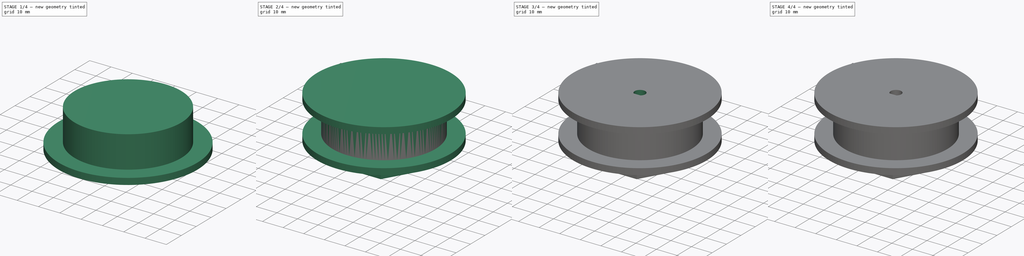
[diagram: build sequence overview — one tinted view per stage of 4, left to right]
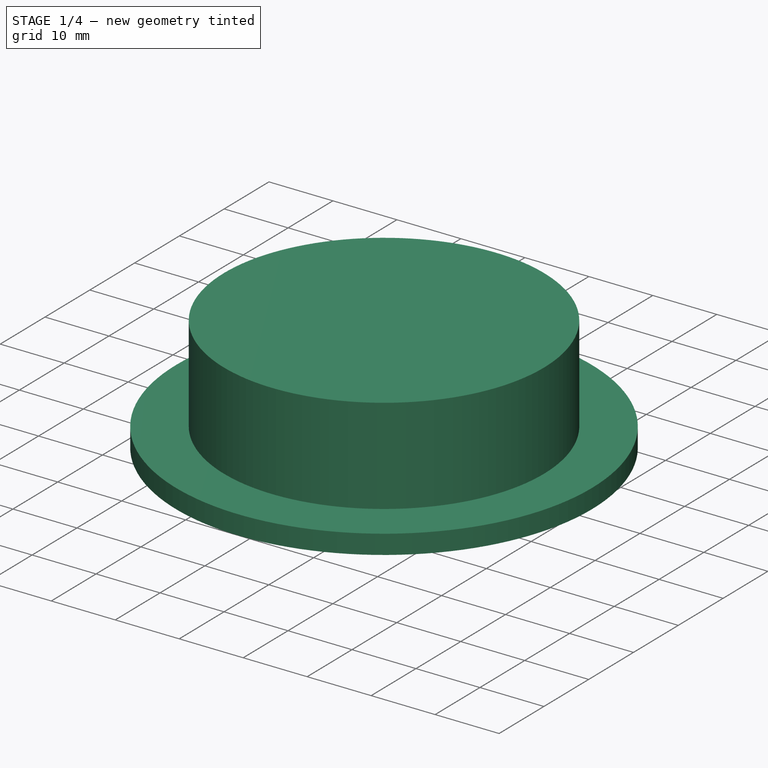
[diagram: stage 1 of 4 — iso view after this stage's code; geometry added in this stage tinted green]
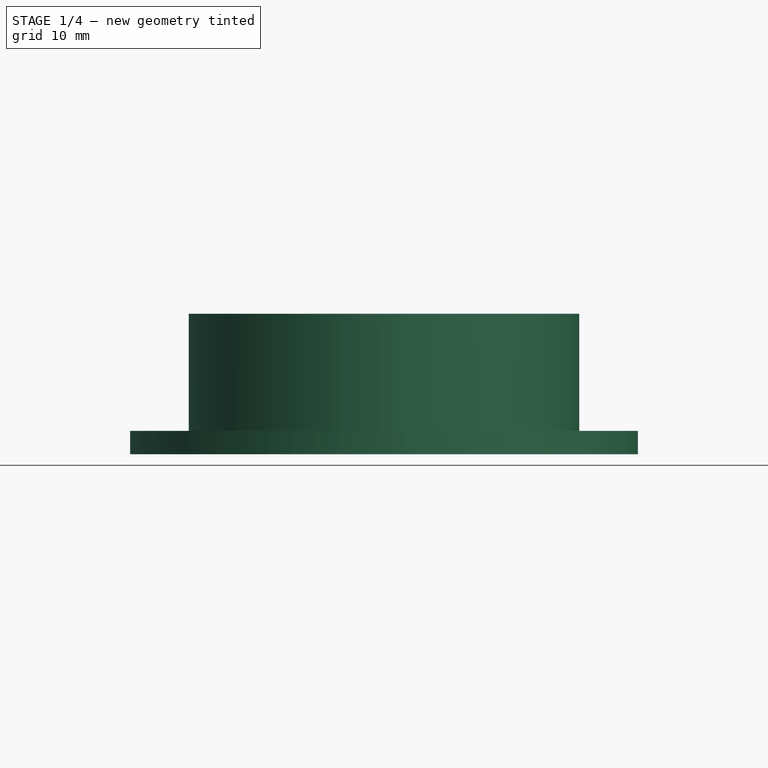
[diagram: stage 1 of 4 — front view after this stage's code; geometry added in this stage tinted green]
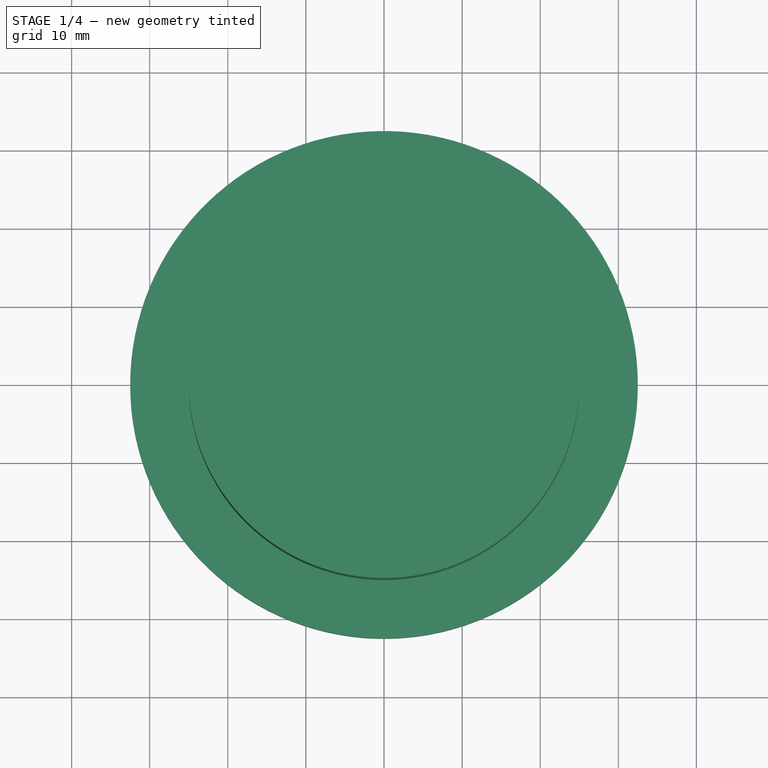
[diagram: stage 1 of 4 — top view after this stage's code; geometry added in this stage tinted green]
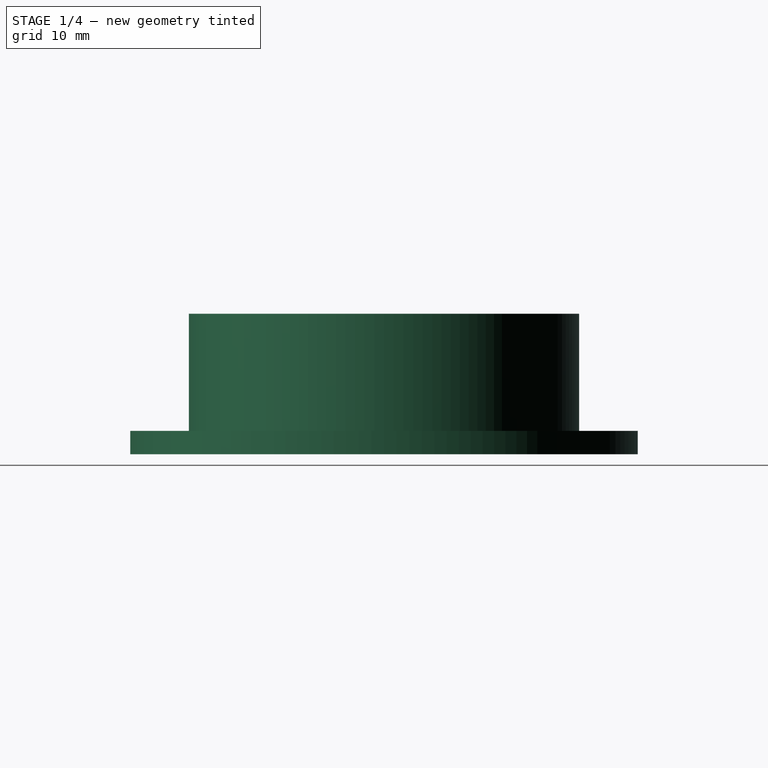
[diagram: stage 1 of 4 — right view after this stage's code; geometry added in this stage tinted green]
FCSTD DOCUMENT  (FreeCAD 0.21R33694 (Git))
Label: carretel_v4
License: All rights reserved
LicenseURL: https://en.wikipedia.org/wiki/All_rights_reserved
objects: Sketcher::SketchObject×8, PartDesign::Pocket×5, PartDesign::Pad×4, PartDesign::Body×2, PartDesign::Boolean×1
note: 29 computed .brp shape members not serialized (recipe doc carries the construction recipe); baked Part::Feature solids carry a one-line shape summary decoded from their .brp

FEATURE [Sketcher::SketchObject] Sketch  label="sk agarre"
  FullyConstrained = true
  MapMode = 5
  Support = -> [XY_Plane001]
  sketch-geometry (7):
    g0: LineSegment StartX=15 StartY=0 StartZ=0 EndX=7.5 EndY=12.9904 EndZ=0
    g1: LineSegment StartX=7.5 StartY=12.9904 StartZ=0 EndX=-7.5 EndY=12.9904 EndZ=0
    g2: LineSegment StartX=-7.5 StartY=12.9904 StartZ=0 EndX=-15 EndY=0 EndZ=0
    g3: LineSegment StartX=-15 StartY=7e-16 StartZ=0 EndX=-7.5 EndY=-12.9904 EndZ=0
    g4: LineSegment StartX=-7.5 StartY=-12.9904 StartZ=0 EndX=7.5 EndY=-12.9904 EndZ=0
    g5: LineSegment StartX=7.5 StartY=-12.9904 StartZ=0 EndX=15 EndY=0 EndZ=0
    g6: Circle CenterX=0 CenterY=0 CenterZ=0 NormalX=0 NormalY=0 NormalZ=1 AngleXU=0 Radius=15
  constraints (16):
    c: Coincident(g0,g1)
    c: Coincident(g1,g2)
    c: Coincident(g2,g3)
    c: Coincident(g3,g4)
    c: Coincident(g4,g5)
    c: Coincident(g5,g0)
    c: Equal(g0, g1-g5) x5
    c: PointOnObject(g0,g6)
    c: PointOnObject(g1,g6)
    c: PointOnObject(g2,g6)
    c: PointOnObject(g3,g6)
    c: PointOnObject(g4,g6)
    c: PointOnObject(g5,g6)
    c: Coincident(g6,g-1)
    c: PointOnObject(g5,g-1)
    c: DistanceX(g1,g1) = 15
FEATURE [Sketcher::SketchObject] Sketch001  label="sk carretel base"
  FullyConstrained = true
  MapMode = 5
  Support = -> [XY_Plane]
  sketch-geometry (1):
    g0: Circle CenterX=0 CenterY=0 CenterZ=0 NormalX=0 NormalY=0 NormalZ=1 AngleXU=0 Radius=32.5
  constraints (2):
    c: Coincident(g0,g-1)
    c: Diameter(g0) = 65
FEATURE [PartDesign::Pad] Pad001  label="base carretel"
  Direction = (0,0,1)
  Length = 3
  Length2 = 10
  Profile = -> Sketch001
  ReferenceAxis = -> Sketch001 [N_Axis]
  Type = 0
FEATURE [Sketcher::SketchObject] Sketch002  label="sk carretel tronco"
  FullyConstrained = true
  MapMode = 2
  Placement = pos=(0,0,3) rot=(0,0,1;0rad)
  Support = -> [Sketch002]
  sketch-geometry (1):
    g0: Circle CenterX=0 CenterY=0 CenterZ=0 NormalX=0 NormalY=0 NormalZ=1 AngleXU=0 Radius=25
  constraints (2):
    c: Coincident(g0,g-1)
    c: Diameter(g0) = 50
FEATURE [PartDesign::Pad] Pad002  label="tronco"
  BaseFeature = -> Pad001
  Direction = (0,0,1)
  Length = 15
  Length2 = 10
  Profile = -> Sketch002
  ReferenceAxis = -> Sketch002 [N_Axis]
  Type = 0
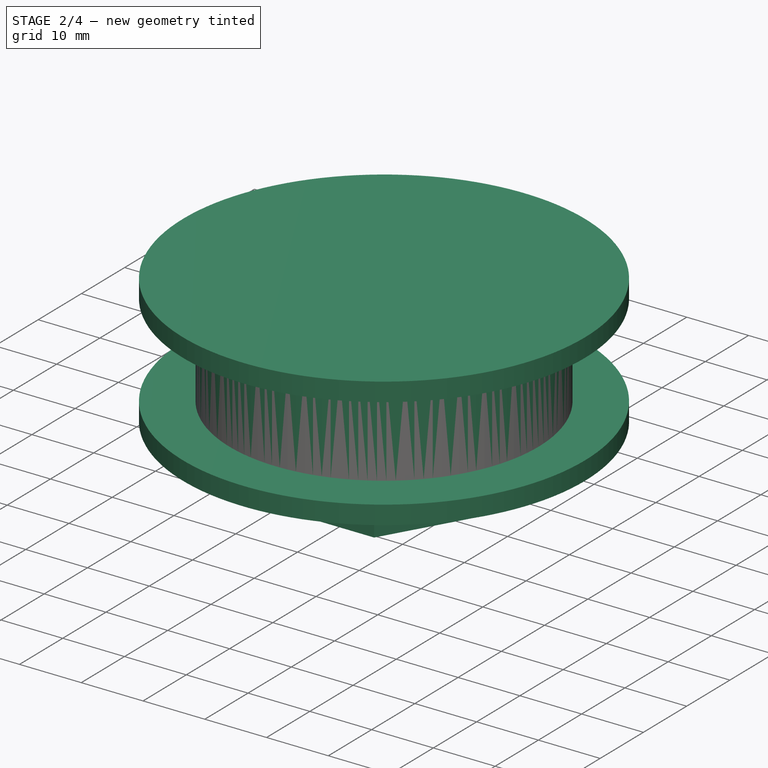
[diagram: stage 2 of 4 — iso view after this stage's code; geometry added in this stage tinted green]
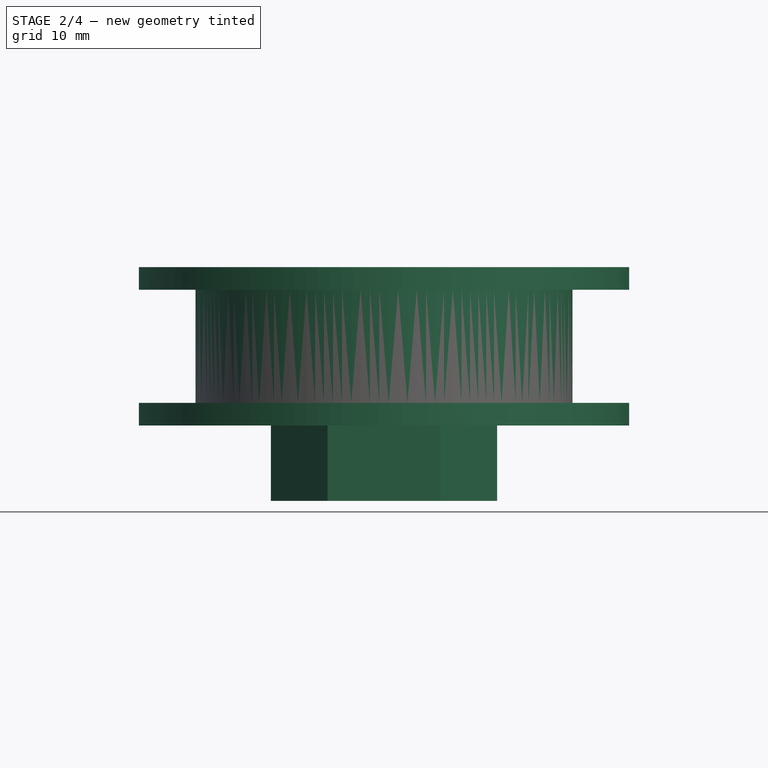
[diagram: stage 2 of 4 — front view after this stage's code; geometry added in this stage tinted green]
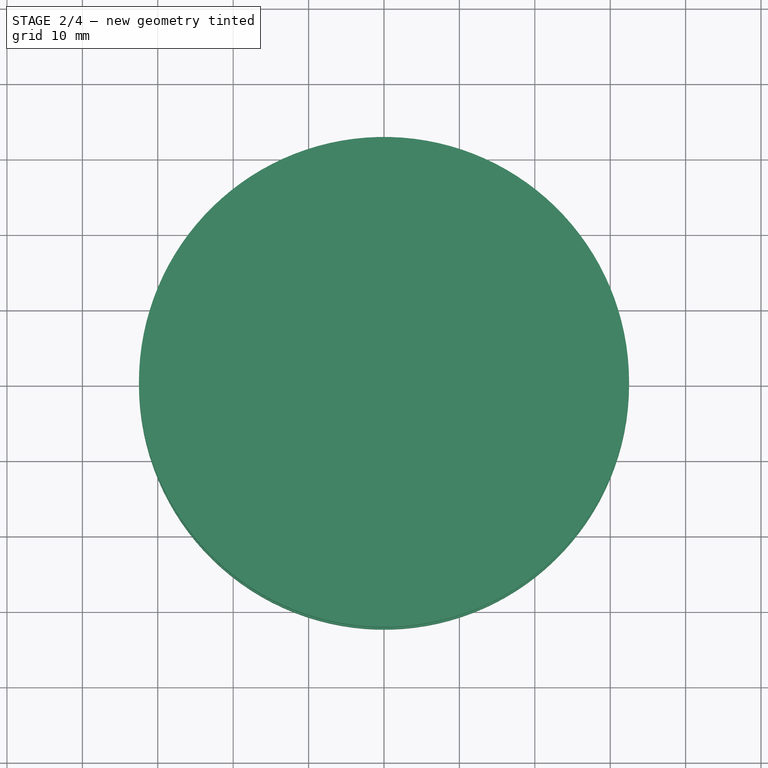
[diagram: stage 2 of 4 — top view after this stage's code; geometry added in this stage tinted green]
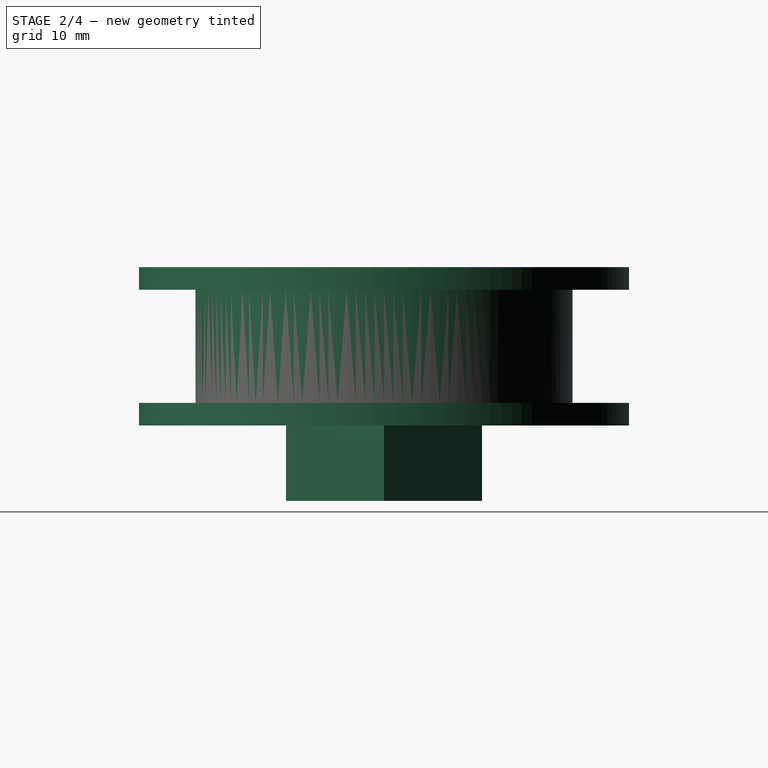
[diagram: stage 2 of 4 — right view after this stage's code; geometry added in this stage tinted green]
FEATURE [PartDesign::Pad] Pad  label="agarre"
  Direction = (0,0,1)
  Length = 10
  Length2 = 10
  Profile = -> Sketch
  ReferenceAxis = -> Sketch [N_Axis]
  Type = 0
FEATURE [Sketcher::SketchObject] Sketch003  label="sk carretel tapa"
  FullyConstrained = true
  MapMode = 5
  Placement = pos=(0,0,18) rot=(0,0,1;0rad)
  Support = -> [Pad002]
  sketch-geometry (1):
    g0: Circle CenterX=0 CenterY=0 CenterZ=0 NormalX=0 NormalY=0 NormalZ=1 AngleXU=0 Radius=32.5
  constraints (2):
    c: Coincident(g0,g-1)
    c: Diameter(g0) = 65
FEATURE [PartDesign::Pad] Pad003  label="tapa"
  BaseFeature = -> Pad002
  Direction = (0,0,1)
  Length = 3
  Length2 = 10
  Profile = -> Sketch003
  ReferenceAxis = -> Sketch003 [N_Axis]
  Type = 0
FEATURE [PartDesign::Body] Body  label="carretel"
  Group = -> [Sketch001,Pad001,Sketch002,Pad002,Sketch003,Pad003]
  Origin = -> Origin
  Placement = pos=(0,0,10) rot=(0,0,1;0rad)
  Tip = -> Pad003
FEATURE [PartDesign::Boolean] Boolean  label="fusion de carretel"
  BaseFeature = -> Pad
  Group = -> [Body]
  Type = 0
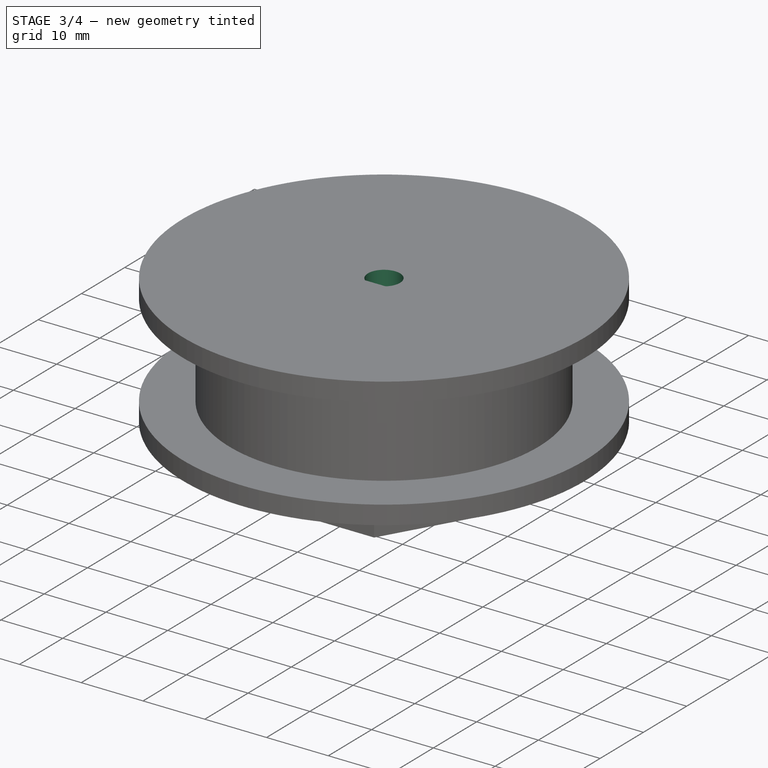
[diagram: stage 3 of 4 — iso view after this stage's code; geometry added in this stage tinted green]
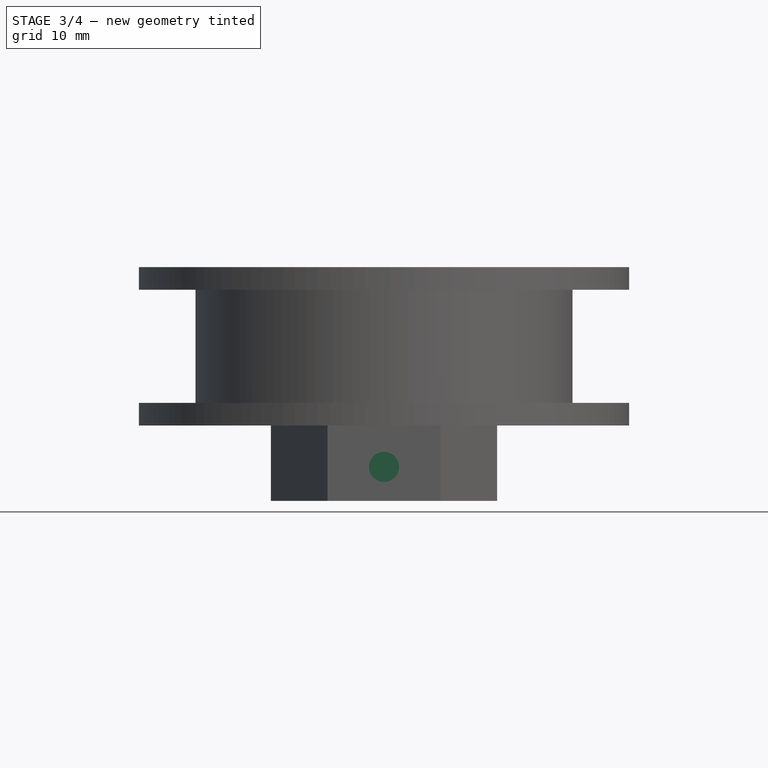
[diagram: stage 3 of 4 — front view after this stage's code; geometry added in this stage tinted green]
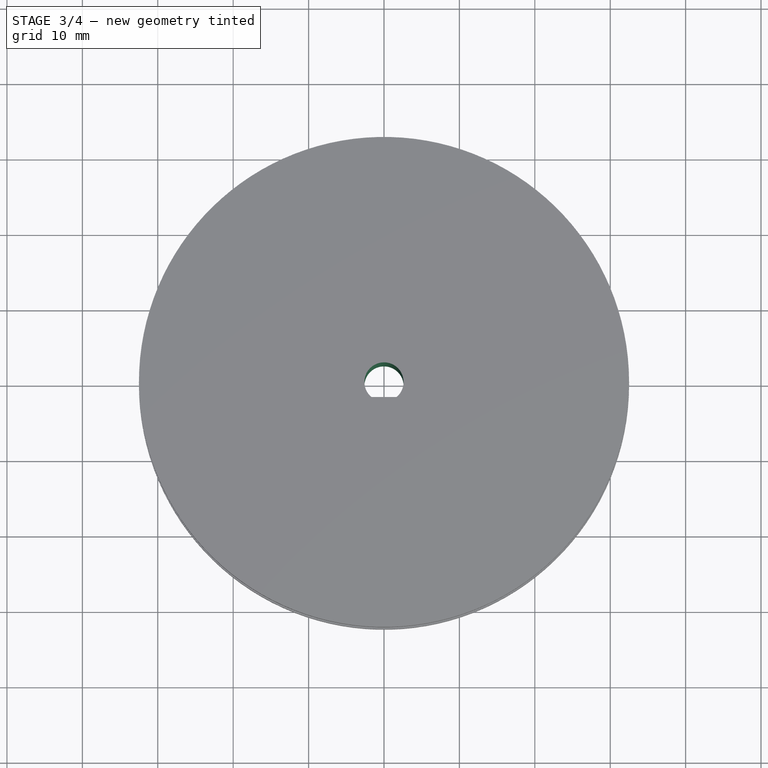
[diagram: stage 3 of 4 — top view after this stage's code; geometry added in this stage tinted green]
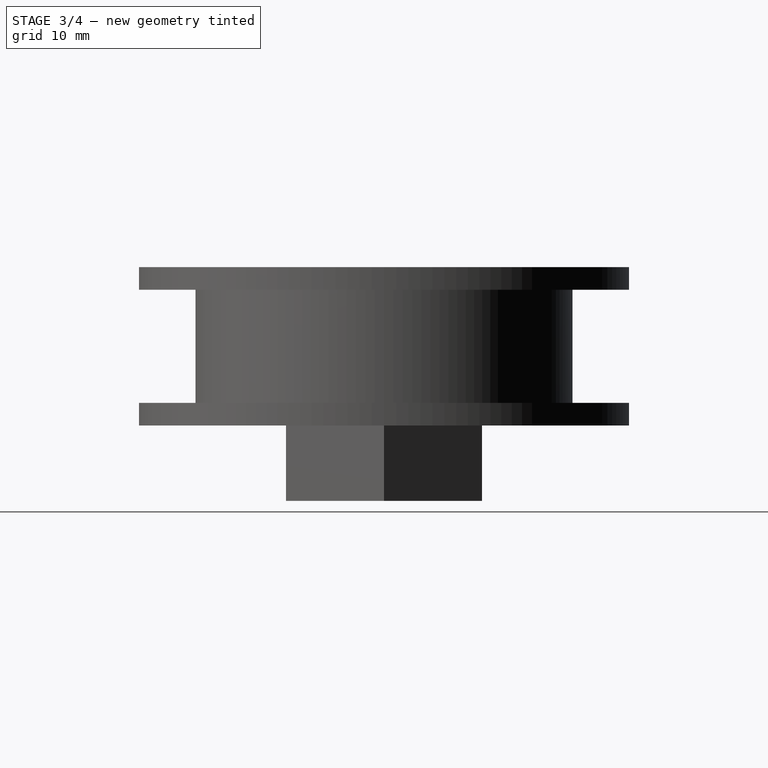
[diagram: stage 3 of 4 — right view after this stage's code; geometry added in this stage tinted green]
FEATURE [Sketcher::SketchObject] Sketch004  label="eje"
  FullyConstrained = true
  MapMode = 2
  Placement = pos=(0,0,0) rot=(1,0,0;3.14159rad)
  Support = -> [Sketch004]
  sketch-geometry (2):
    g0: ArcOfCircle CenterX=0 CenterY=0 CenterZ=0 NormalX=0 NormalY=0 NormalZ=1 AngleXU=0 Radius=2.6 StartAngle=2.26396 EndAngle=7.16082
    g1: LineSegment StartX=-1.66132 StartY=2 StartZ=0 EndX=1.66132 EndY=2 EndZ=0
  constraints (6):
    c: Coincident(g0,g-1)
    c: Diameter(g0) = 5.2
    c: Horizontal(g1)
    c: Distance(g0,g1) = 2
    c: Coincident(g1,g0)
    c: Coincident(g1,g0)
FEATURE [PartDesign::Pocket] Pocket  label="agujero"
  BaseFeature = -> Boolean
  Direction = (0,0,1)
  Length = 31
  Length2 = 5
  Profile = -> Sketch004
  ReferenceAxis = -> Sketch004 [N_Axis]
  Type = 0
FEATURE [Sketcher::SketchObject] Sketch005
  FullyConstrained = true
  MapMode = 5
  Placement = pos=(0,0,0) rot=(1,0,0;3.14159rad)
  Support = -> [Pocket]
  sketch-geometry (4):
    g0: LineSegment StartX=-4 StartY=9.5 StartZ=0 EndX=4 EndY=9.5 EndZ=0
    g1: LineSegment StartX=4 StartY=9.5 StartZ=0 EndX=4 EndY=6 EndZ=0
    g2: LineSegment StartX=4 StartY=6 StartZ=0 EndX=-4 EndY=6 EndZ=0
    g3: LineSegment StartX=-4 StartY=6 StartZ=0 EndX=-4 EndY=9.5 EndZ=0
  constraints (12):
    c: Coincident(g0,g1)
    c: Coincident(g1,g2)
    c: Coincident(g2,g3)
    c: Coincident(g3,g0)
    c: Horizontal(g0)
    c: Horizontal(g2)
    c: Vertical(g1)
    c: Vertical(g3)
    c: DistanceY(g1,g1) = 3.5
    c: DistanceX(g0,g0) = 8
    c: Distance(g-1,g1) = 4
    c: Distance(g1,g-1) = 6
FEATURE [PartDesign::Pocket] Pocket001  label="agujeto tuerca"
  BaseFeature = -> Pocket
  Direction = (0,0,1)
  Length = 9
  Length2 = 5
  Profile = -> Sketch005
  ReferenceAxis = -> Sketch005 [N_Axis]
  Type = 0
FEATURE [Sketcher::SketchObject] Sketch006
  FullyConstrained = true
  MapMode = 5
  Placement = pos=(0,-12.9904,0) rot=(1,0,0;1.5708rad)
  Support = -> [Pocket001]
  sketch-geometry (1):
    g0: Circle CenterX=0 CenterY=4.5 CenterZ=0 NormalX=0 NormalY=0 NormalZ=1 AngleXU=0 Radius=2
  constraints (3):
    c: PointOnObject(g0,g-2)
    c: Distance(g0,g-1) = 4.5
    c: Diameter(g0) = 4
FEATURE [PartDesign::Pocket] Pocket002  label="agujero tornillo"
  BaseFeature = -> Pocket001
  Direction = (0,1,-2e-16)
  Length = 7
  Length2 = 5
  Profile = -> Sketch006
  ReferenceAxis = -> Sketch006 [N_Axis]
  Type = 0
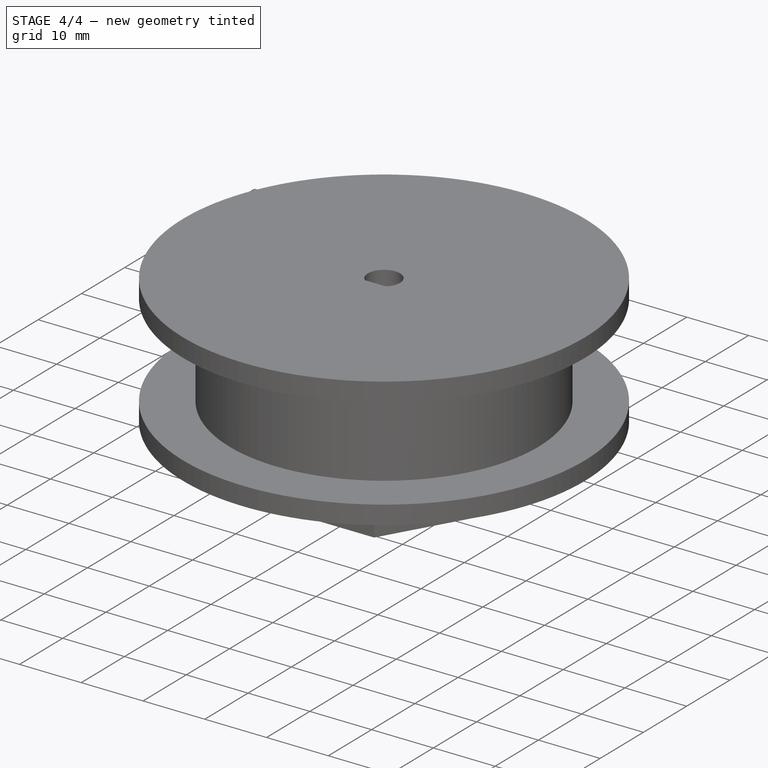
[diagram: stage 4 of 4 — iso view after this stage's code; geometry added in this stage tinted green]
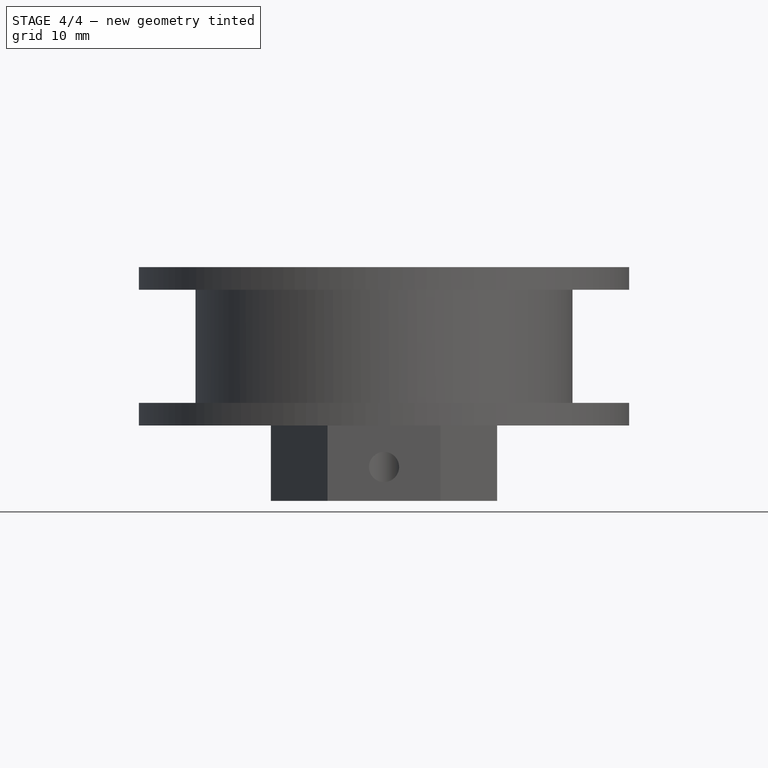
[diagram: stage 4 of 4 — front view after this stage's code; geometry added in this stage tinted green]
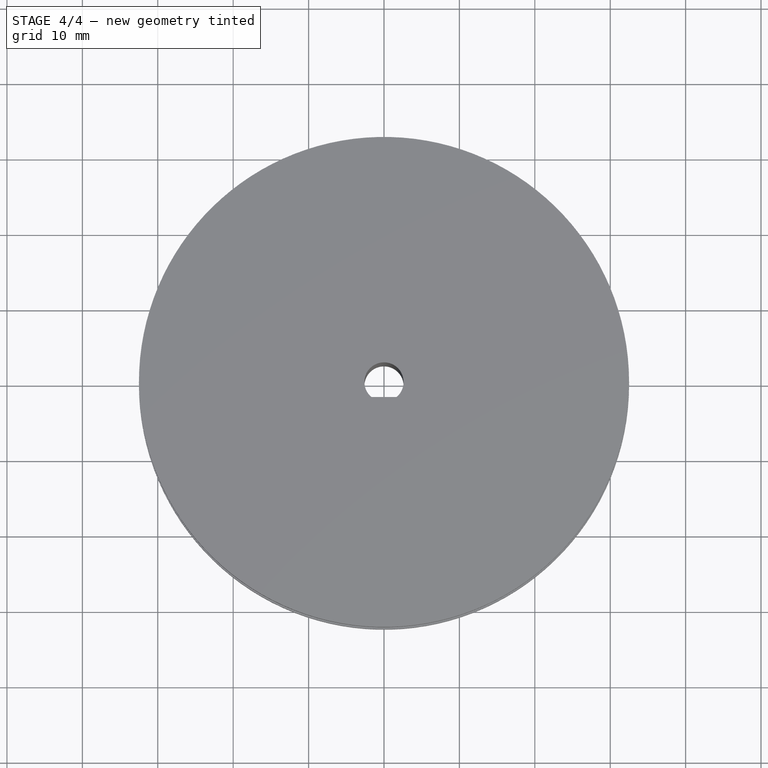
[diagram: stage 4 of 4 — top view after this stage's code; geometry added in this stage tinted green]
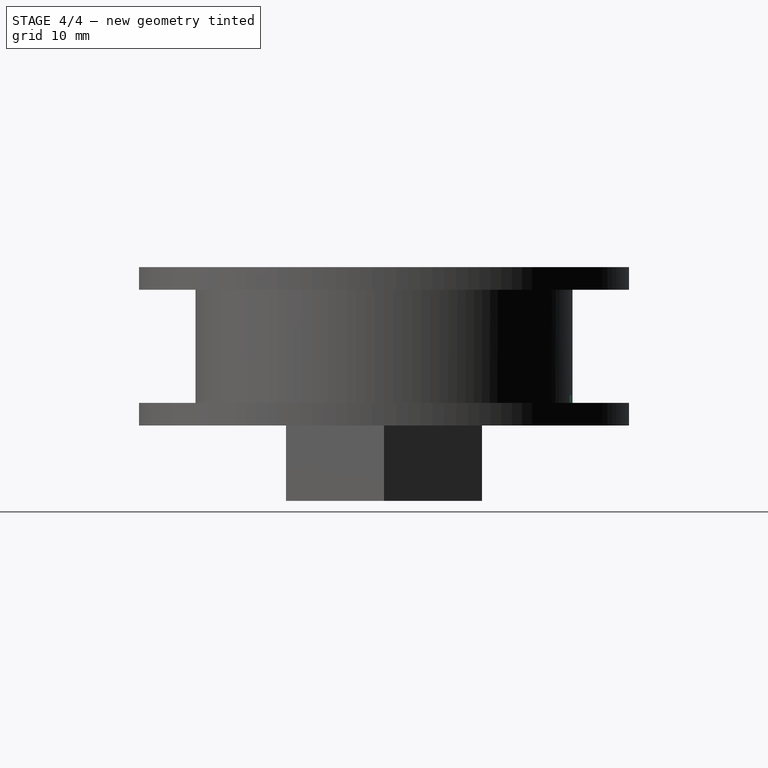
[diagram: stage 4 of 4 — right view after this stage's code; geometry added in this stage tinted green]
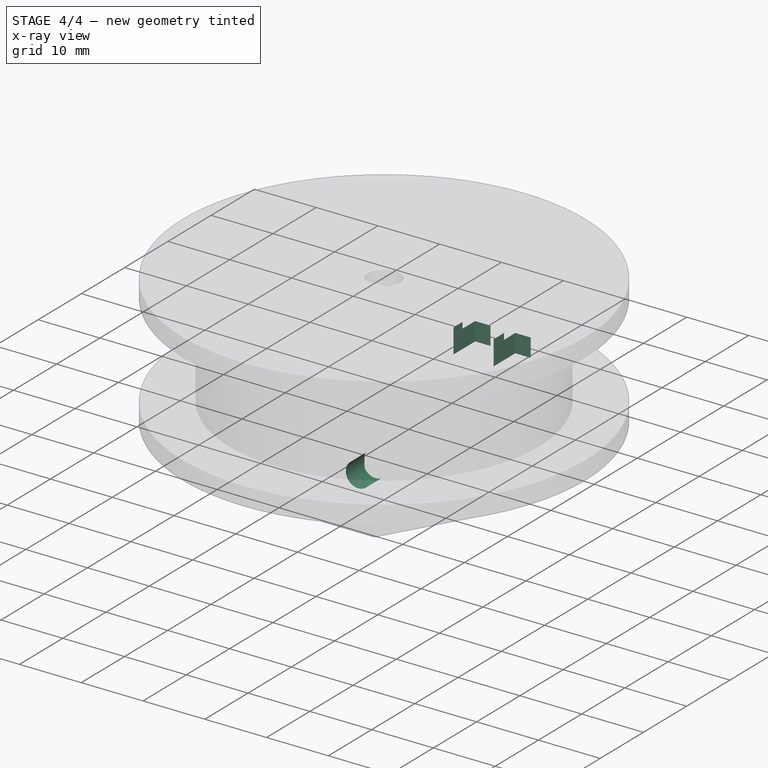
[diagram: stage 4 of 4 — x-ray composite at the iso view; earlier geometry ghosted, this stage's added geometry solid]
FEATURE [Sketcher::SketchObject] Sketch007
  FullyConstrained = true
  MapMode = 5
  Placement = pos=(0,0,9) rot=(1,0,0;3.14159rad)
  Support = -> [Pocket002]
  sketch-geometry (8):
    g0: LineSegment StartX=2 StartY=-22.5 StartZ=0 EndX=4.5 EndY=-22.5 EndZ=0
    g1: LineSegment StartX=4.5 StartY=-22.5 StartZ=0 EndX=4.5 EndY=-27.5 EndZ=0
    g2: LineSegment StartX=4.5 StartY=-27.5 StartZ=0 EndX=2 EndY=-27.5 EndZ=0
    g3: LineSegment StartX=2 StartY=-27.5 StartZ=0 EndX=2 EndY=-22.5 EndZ=0
    g4: LineSegment StartX=-2 StartY=-22.5 StartZ=0 EndX=-4.5 EndY=-22.5 EndZ=0
    g5: LineSegment StartX=-4.5 StartY=-22.5 StartZ=0 EndX=-4.5 EndY=-27.5 EndZ=0
    g6: LineSegment StartX=-4.5 StartY=-27.5 StartZ=0 EndX=-2 EndY=-27.5 EndZ=0
    g7: LineSegment StartX=-2 StartY=-27.5 StartZ=0 EndX=-2 EndY=-22.5 EndZ=0
  constraints (24):
    c: Coincident(g0,g1)
    c: Coincident(g1,g2)
    c: Coincident(g2,g3)
    c: Coincident(g3,g0)
    c: Horizontal(g0)
    c: Horizontal(g2)
    c: Vertical(g1)
    c: Vertical(g3)
    c: DistanceY(g1,g1) = 5
    c: DistanceX(g0,g0) = 2.5
    c: Distance(g-1,g3) = 2
    c: Distance(g-1,g0) = 22.5
    c: Coincident(g4,g5)
    c: Coincident(g5,g6)
    c: Coincident(g6,g7)
    c: Coincident(g7,g4)
    c: Horizontal(g4)
    c: Horizontal(g6)
    c: Vertical(g5)
    c: Vertical(g7)
    c: DistanceY(g7,g7) = 5
    c: DistanceX(g4,g4) = 2.5
    c: Distance(g-1,g4) = 22.5
    c: Distance(g-1,g7) = 2
FEATURE [PartDesign::Pocket] Pocket003
  BaseFeature = -> Pocket002
  Direction = (0,0,1)
  Length = 5
  Length2 = 5
  Profile = -> Sketch007
  ReferenceAxis = -> Sketch007 [N_Axis]
  Type = 0
FEATURE [PartDesign::Pocket] Pocket004
  BaseFeature = -> Pocket003
  Direction = (0,1,-2e-16)
  Length = 13
  Length2 = 5
  Profile = -> Sketch006
  ReferenceAxis = -> Sketch006 [N_Axis]
  Type = 0
FEATURE [PartDesign::Body] Body001  label="base"
  Group = -> [Sketch,Pad,Boolean,Sketch004,Pocket,Sketch005,Pocket001,Sketch006,Pocket002,Sketch007,Pocket003,Pocket004]
  Origin = -> Origin001
  Tip = -> Pocket004
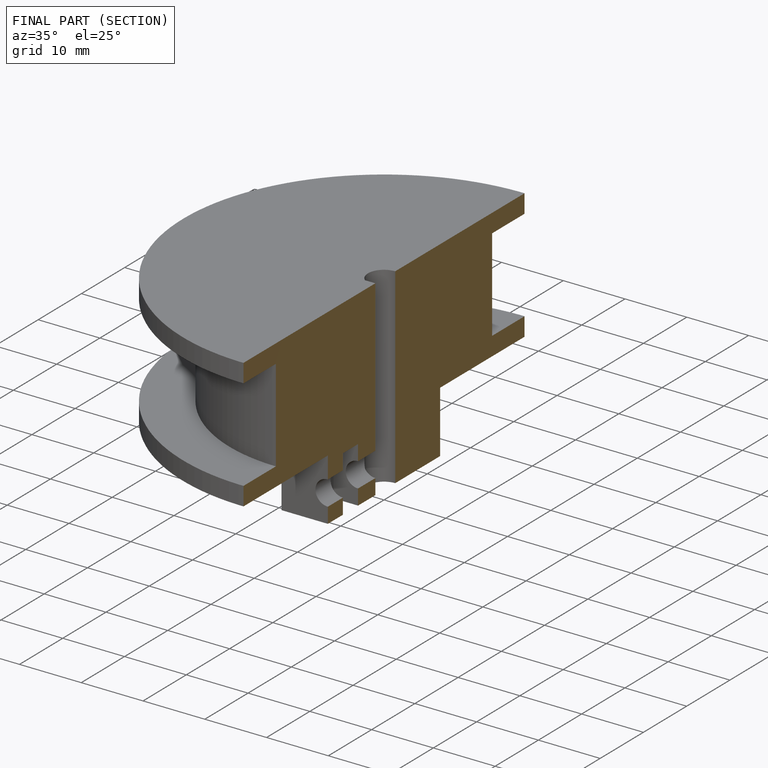
[diagram: finished part — half-section view (interior)]
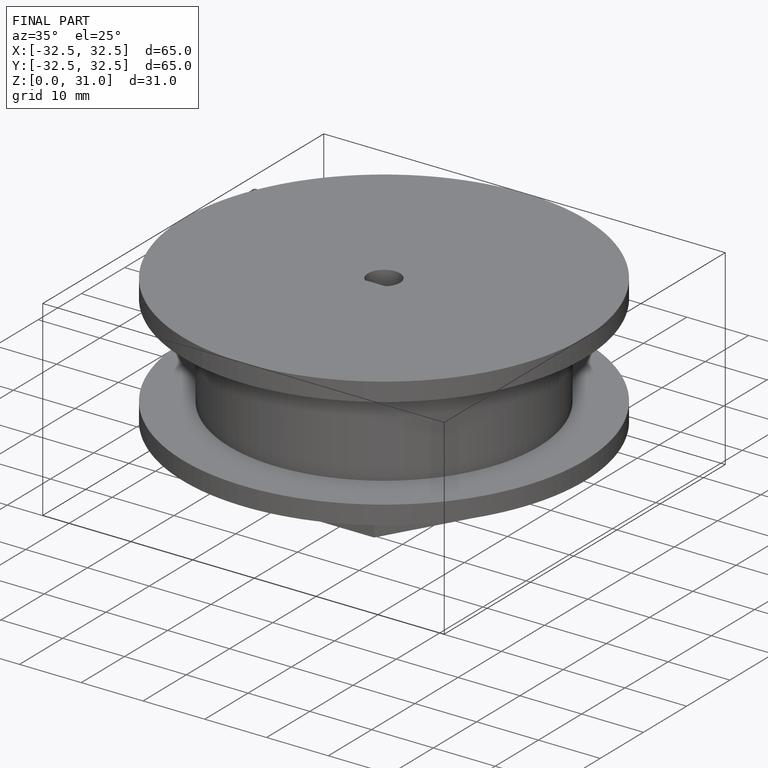
[diagram: finished part — iso view with bounding-box wireframe]
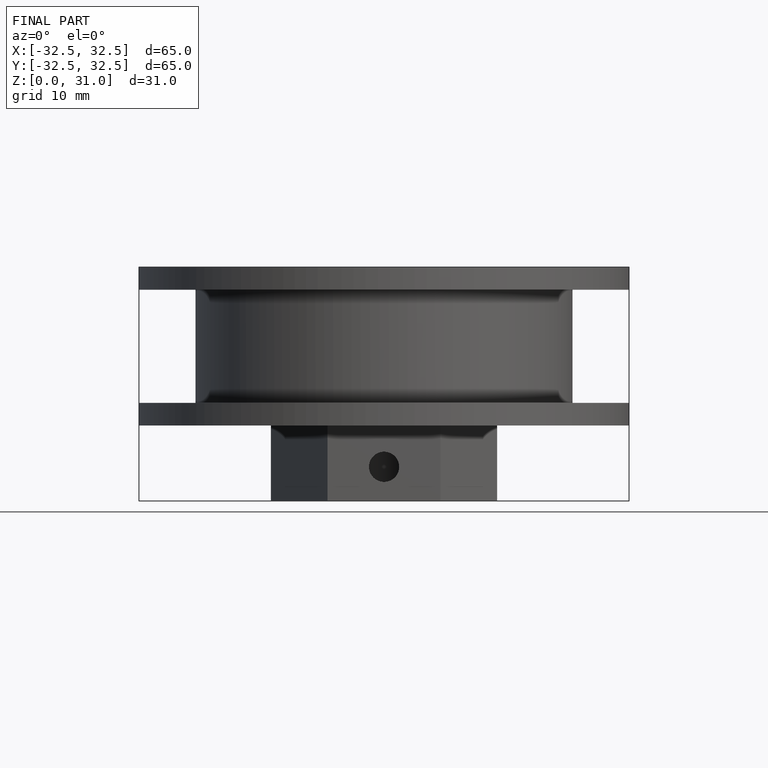
[diagram: finished part — front view with bounding-box wireframe]
